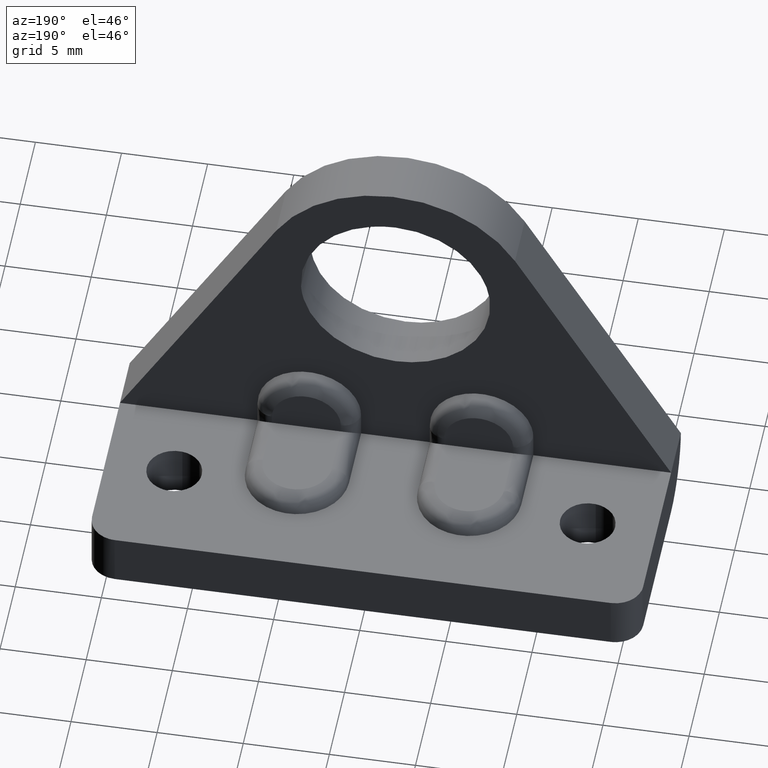
[diagram: clean part render]
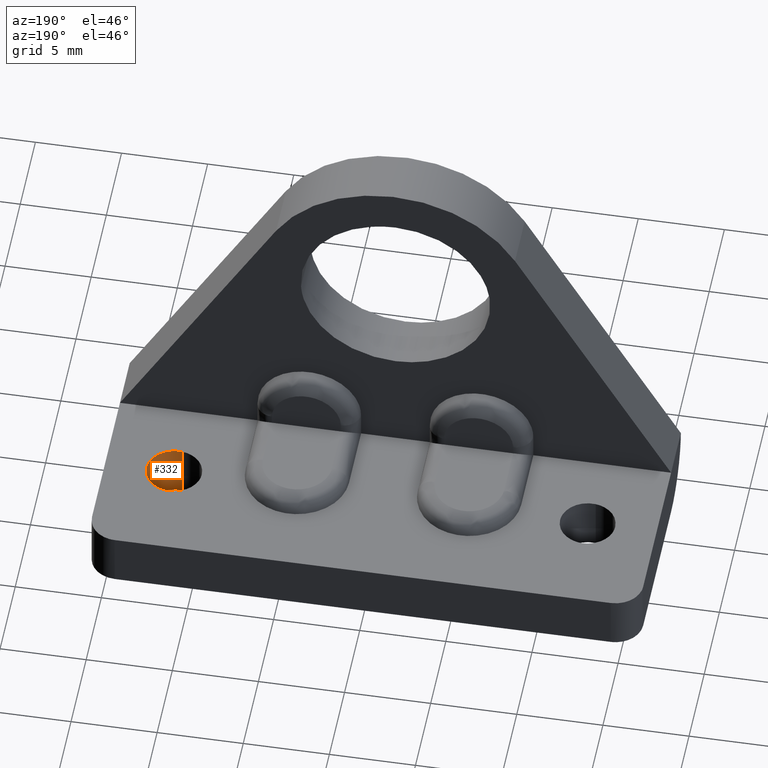
[diagram: same view with one face highlighted and labeled with its STEP entity id]
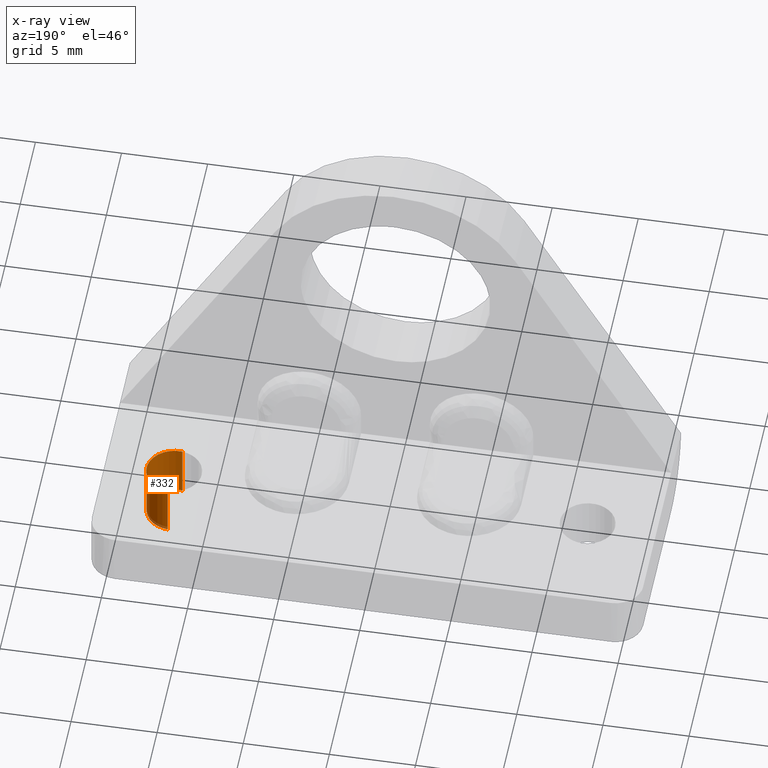
[diagram: x-ray of the same camera — body ghosted, the highlighted face saturated]
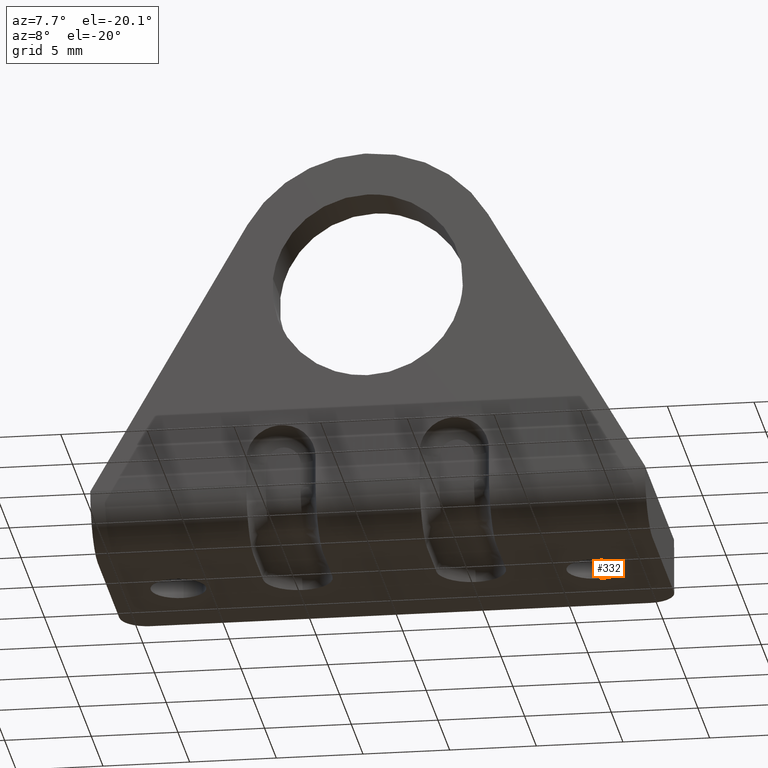
[diagram: same view with one face highlighted and labeled with its STEP entity id]
A machine part, auxiliary view. The second image highlights one B-rep face of the part: STEP entity #332.
The next image is the same camera in x-ray: the body ghosted, the highlighted face saturated — about 3% of this face is hidden behind the body in this view.
A second angle (auxiliary view) of the same face is appended — the face is thin or edge-on in the first view.
In plain terms, the highlighted face is a freeform B-spline surface patch.
Its self-contained STEP definition (entity closure, byte-faithful):
#230=CARTESIAN_POINT('',(11.811145224549188,6.411184757818135,-0.079999924999999));
#231=CARTESIAN_POINT('',(11.856616434179239,6.405779815282231,-0.079999924999999));
#232=CARTESIAN_POINT('',(11.902322336744231,6.402984322525013,-0.079999924999999));
#233=CARTESIAN_POINT('',(13.499338014219216,6.305306659269242,-0.079999924999999));
#234=CARTESIAN_POINT('',(13.597015677474991,7.902322336744229,-0.079999924999999));
#235=CARTESIAN_POINT('',(13.694693340730758,9.499338014219216,-0.079999924999999));
#236=CARTESIAN_POINT('',(12.097677663255769,9.597015677474987,-0.079999924999999));
#237=CARTESIAN_POINT('',(11.811145224549188,6.411184757818135,3.281996923124955));
#238=CARTESIAN_POINT('',(11.856616434179239,6.405779815282231,3.281996923124955));
#239=CARTESIAN_POINT('',(11.902322336744231,6.402984322525013,3.281996923124954));
#240=CARTESIAN_POINT('',(13.499338014219216,6.305306659269242,3.281996923124955));
#241=CARTESIAN_POINT('',(13.597015677474991,7.902322336744229,3.281996923124954));
#242=CARTESIAN_POINT('',(13.694693340730758,9.499338014219216,3.281996923124955));
#243=CARTESIAN_POINT('',(12.097677663255769,9.597015677474987,3.281996923124954));
#251=(BOUNDED_SURFACE()B_SPLINE_SURFACE(2,1,((#230,#237),(#231,#238),(#232,#239),(#233,#240),(#234,#241),(#235,#242),(#236,#243)),.UNSPECIFIED.,.F.,.F.,.U.)B_SPLINE_SURFACE_WITH_KNOTS((3,2,2,3),(2,2),(3.078760800517997,3.141592653589793,4.712388980384690,6.283185307179586),(0.0,3.361996848124954),.UNSPECIFIED.)GEOMETRIC_REPRESENTATION_ITEM()RATIONAL_B_SPLINE_SURFACE(((0.977505800795127,0.977505800795127),(0.988284271247462,0.988284271247462),(1.0,1.0),(0.707106781186548,0.707106781186548),(1.0,1.0),(0.707106781186548,0.707106781186548),(1.0,1.0)))REPRESENTATION_ITEM('')SURFACE());
#252=CARTESIAN_POINT('',(11.811145224536640,6.411184757819625,3.199996999999955));
#253=VERTEX_POINT('',#252);
#254=CARTESIAN_POINT('',(13.600000000000000,8.0,3.199996999999955));
#255=VERTEX_POINT('',#254);
#256=CARTESIAN_POINT('',(11.811145224536643,6.411184757819625,3.199996999999955));
#257=CARTESIAN_POINT('',(11.905241408544265,6.400000000000000,3.199996999999956));
#258=CARTESIAN_POINT('',(12.0,6.400000000000000,3.199996999999955));
#259=CARTESIAN_POINT('',(13.600000000000003,6.400000000000000,3.199996999999955));
#260=CARTESIAN_POINT('',(13.600000000000000,8.0,3.199996999999955));
#268=(BOUNDED_CURVE()B_SPLINE_CURVE(2,(#256,#257,#258,#259,#260),.UNSPECIFIED.,.F.,.U.)B_SPLINE_CURVE_WITH_KNOTS((3,2,3),(0.229562473512975,0.250000000000000,0.500000000000000),.UNSPECIFIED.)CURVE()GEOMETRIC_REPRESENTATION_ITEM()RATIONAL_B_SPLINE_CURVE((0.956026754182654,0.976055948330520,1.0,0.707106781186548,1.0))REPRESENTATION_ITEM(''));
#269=EDGE_CURVE('',#253,#255,#268,.T.);
#270=ORIENTED_EDGE('',*,*,#269,.T.);
#271=CARTESIAN_POINT('',(12.097677663338990,9.597015677469898,3.199996999999955));
#272=VERTEX_POINT('',#271);
#273=CARTESIAN_POINT('',(13.600000000000000,8.0,3.199996999999955));
#274=CARTESIAN_POINT('',(13.600000000000003,9.505129706891959,3.199996999999955));
#275=CARTESIAN_POINT('',(12.097677663338995,9.597015677469898,3.199996999999955));
#283=(BOUNDED_CURVE()B_SPLINE_CURVE(2,(#273,#274,#275),.UNSPECIFIED.,.F.,.U.)B_SPLINE_CURVE_WITH_KNOTS((3,3),(0.500000000000000,0.739332962223986),.UNSPECIFIED.)CURVE()GEOMETRIC_REPRESENTATION_ITEM()RATIONAL_B_SPLINE_CURVE((1.0,0.719603993304233,0.976072041634662))REPRESENTATION_ITEM(''));
#284=EDGE_CURVE('',#255,#272,#283,.T.);
#285=ORIENTED_EDGE('',*,*,#284,.T.);
#286=CARTESIAN_POINT('',(12.097677663338990,9.597015677469898,-1.179612E-016));
#287=VERTEX_POINT('',#286);
#288=CARTESIAN_POINT('',(12.097677663338990,9.597015677469898,-1.179612E-016));
#289=CARTESIAN_POINT('',(12.097677663338990,9.597015677469898,3.199996999999955));
#290=QUASI_UNIFORM_CURVE('',1,(#288,#289),.UNSPECIFIED.,.F.,.U.);
#291=EDGE_CURVE('',#287,#272,#290,.T.);
#292=ORIENTED_EDGE('',*,*,#291,.F.);
#293=CARTESIAN_POINT('',(13.600000000000000,8.0,0.0));
#294=VERTEX_POINT('',#293);
#295=CARTESIAN_POINT('',(13.600000000000000,8.0,0.0));
#296=CARTESIAN_POINT('',(13.600000000000003,9.505129706891959,0.0));
#297=CARTESIAN_POINT('',(12.097677663338995,9.597015677469898,-1.179612E-016));
#305=(BOUNDED_CURVE()B_SPLINE_CURVE(2,(#295,#296,#297),.UNSPECIFIED.,.F.,.U.)B_SPLINE_CURVE_WITH_KNOTS((3,3),(0.500000000000000,0.739332962223986),.UNSPECIFIED.)CURVE()GEOMETRIC_REPRESENTATION_ITEM()RATIONAL_B_SPLINE_CURVE((1.0,0.719603993304233,0.976072041634662))REPRESENTATION_ITEM(''));
#306=EDGE_CURVE('',#294,#287,#305,.T.);
#307=ORIENTED_EDGE('',*,*,#306,.F.);
#308=CARTESIAN_POINT('',(11.811145224536640,6.411184757819625,-1.135771E-016));
#309=VERTEX_POINT('',#308);
#310=CARTESIAN_POINT('',(11.811145224536642,6.411184757819625,-1.135771E-016));
#311=CARTESIAN_POINT('',(11.905241408544265,6.400000000000000,0.0));
#312=CARTESIAN_POINT('',(12.0,6.400000000000000,0.0));
#313=CARTESIAN_POINT('',(13.600000000000003,6.400000000000000,0.0));
#314=CARTESIAN_POINT('',(13.600000000000000,8.0,0.0));
#322=(BOUNDED_CURVE()B_SPLINE_CURVE(2,(#310,#311,#312,#313,#314),.UNSPECIFIED.,.F.,.U.)B_SPLINE_CURVE_WITH_KNOTS((3,2,3),(0.229562473512975,0.250000000000000,0.500000000000000),.UNSPECIFIED.)CURVE()GEOMETRIC_REPRESENTATION_ITEM()RATIONAL_B_SPLINE_CURVE((0.956026754182654,0.976055948330520,1.0,0.707106781186548,1.0))REPRESENTATION_ITEM(''));
#323=EDGE_CURVE('',#309,#294,#322,.T.);
#324=ORIENTED_EDGE('',*,*,#323,.F.);
#325=CARTESIAN_POINT('',(11.811145224536640,6.411184757819625,-1.135771E-016));
#326=CARTESIAN_POINT('',(11.811145224536640,6.411184757819625,3.199996999999955));
#327=QUASI_UNIFORM_CURVE('',1,(#325,#326),.UNSPECIFIED.,.F.,.U.);
#328=EDGE_CURVE('',#309,#253,#327,.T.);
#329=ORIENTED_EDGE('',*,*,#328,.T.);
#330=EDGE_LOOP('',(#270,#285,#292,#307,#324,#329));
#331=FACE_OUTER_BOUND('',#330,.T.);
#332=ADVANCED_FACE('',(#331),#251,.F.);